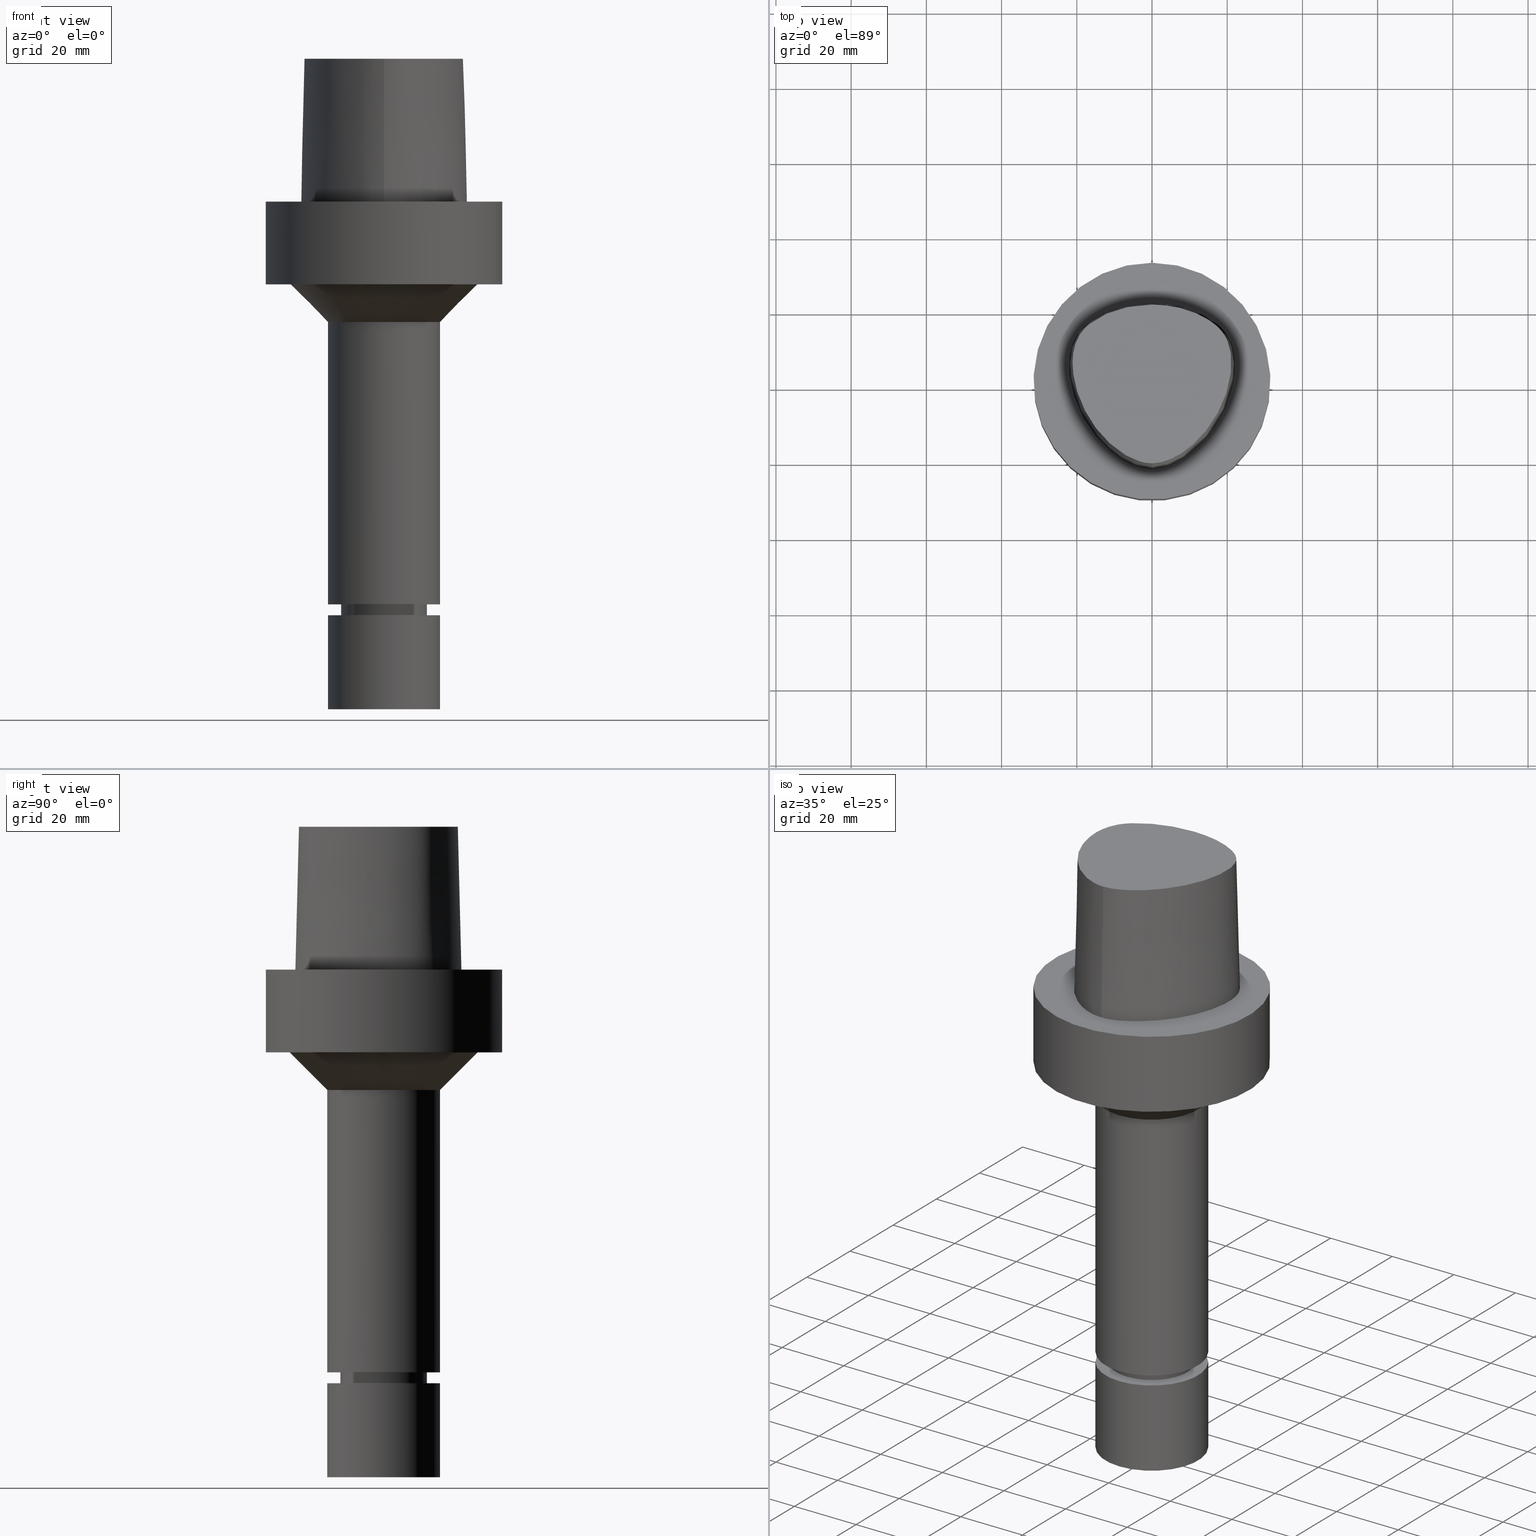
[diagram: canonical four-view strip — front | top / right | iso, engineering-drawing reading convention]
A machine part, canonical four-view strip (front | top / right | iso — engineering-drawing reading convention). The complete STEP part file that produces these views, byte-faithful:
ISO-10303-21;
HEADER;
FILE_DESCRIPTION((''),'1');
FILE_NAME('V:/90_\X2\53D65F9730C730FC30BF\X0\/00_\X2\6DE18DEF30C730FC30BF\X0\/ALL/CAPTO-BKUS\X2\52A05DE556F3\X0\_201801/C6-MEGAER/C6-MEGAER16-135NL.stp','2018-02-01T07:54:07',(''),(''),'Spatial Interop R21 SP3','Kubotek KeyCreator 2011 V10.0.2 (22737)',' ');
FILE_SCHEMA(('automotive_design'));
ENDSEC;
DATA;
#1=MECHANICAL_DESIGN_GEOMETRIC_PRESENTATION_REPRESENTATION(' ',(#14,#15,#16,#17,#18,#19,#20,#21,#22,#23,#24,#25,#26,#27,#28,#29,#30,#31,#32,#33,#34,#35,#36,#37,#38,#39,#40,#41,#42,#43,#44,#45,#46,#47,#48,#49,#50,#51,#52,#53),#10);
#2=PRODUCT_DEFINITION_CONTEXT('',#54,'design');
#3=APPLICATION_PROTOCOL_DEFINITION('INTERNATIONAL STANDARD','automotive_design',1994,#54);
#4=PRODUCT_CATEGORY_RELATIONSHIP('NONE','NONE',#55,#56);
#5=SHAPE_DEFINITION_REPRESENTATION(#57,#58);
#6=PRODUCT_DEFINITION_CONTEXT('',#59,'design');
#7=APPLICATION_PROTOCOL_DEFINITION('INTERNATIONAL STANDARD','automotive_design',1994,#59);
#8=PRODUCT_CATEGORY_RELATIONSHIP('NONE','NONE',#60,#61);
#9=SHAPE_DEFINITION_REPRESENTATION(#62,#63);
#10= (GEOMETRIC_REPRESENTATION_CONTEXT(3)GLOBAL_UNCERTAINTY_ASSIGNED_CONTEXT((#66))GLOBAL_UNIT_ASSIGNED_CONTEXT((#68,#69,#70))REPRESENTATION_CONTEXT('NONE','WORKSPACE'));
#14=STYLED_ITEM('',(#72,#73),#74);
#15=STYLED_ITEM('',(#75,#76),#77);
#16=STYLED_ITEM('',(#78,#79),#80);
#17=STYLED_ITEM('',(#81,#82),#83);
#18=STYLED_ITEM('',(#84),#85);
#19=STYLED_ITEM('',(#86,#87),#88);
#20=STYLED_ITEM('',(#89,#90),#91);
#21=STYLED_ITEM('',(#92),#93);
#22=STYLED_ITEM('',(#94),#95);
#23=STYLED_ITEM('',(#96,#97),#98);
#24=STYLED_ITEM('',(#99,#100),#101);
#25=STYLED_ITEM('',(#102),#103);
#26=STYLED_ITEM('',(#104),#105);
#27=STYLED_ITEM('',(#106),#107);
#28=STYLED_ITEM('',(#108),#109);
#29=STYLED_ITEM('',(#110,#111),#112);
#30=STYLED_ITEM('',(#113,#114),#115);
#31=STYLED_ITEM('',(#116,#117),#118);
#32=STYLED_ITEM('',(#119),#120);
#33=STYLED_ITEM('',(#121),#122);
#34=STYLED_ITEM('',(#123),#124);
#35=STYLED_ITEM('',(#125,#126),#127);
#36=STYLED_ITEM('',(#128),#129);
#37=STYLED_ITEM('',(#130,#131),#132);
#38=STYLED_ITEM('',(#133,#134),#135);
#39=STYLED_ITEM('',(#136,#137),#138);
#40=STYLED_ITEM('',(#139),#140);
#41=STYLED_ITEM('',(#141),#142);
#42=STYLED_ITEM('',(#143),#144);
#43=STYLED_ITEM('',(#145),#146);
#44=STYLED_ITEM('',(#147,#148),#149);
#45=STYLED_ITEM('',(#150),#151);
#46=STYLED_ITEM('',(#152),#153);
#47=STYLED_ITEM('',(#154,#155),#156);
#48=STYLED_ITEM('',(#157),#158);
#49=STYLED_ITEM('',(#159,#160),#161);
#50=STYLED_ITEM('',(#162,#163),#164);
#51=STYLED_ITEM('',(#165),#166);
#52=STYLED_ITEM('',(#167,#168),#169);
#53=STYLED_ITEM('',(#170),#171);
#54=APPLICATION_CONTEXT(' ');
#55=PRODUCT_CATEGORY('part','NONE');
#56=PRODUCT_RELATED_PRODUCT_CATEGORY('detail',' ',(#172));
#57=PRODUCT_DEFINITION_SHAPE('NONE','NONE',#173);
#58=ADVANCED_BREP_SHAPE_REPRESENTATION('Unnamed[1]',(#135,#174),#10);
#59=APPLICATION_CONTEXT(' ');
#60=PRODUCT_CATEGORY('part','NONE');
#61=PRODUCT_RELATED_PRODUCT_CATEGORY('detail',' ',(#175));
#62=PRODUCT_DEFINITION_SHAPE('NONE','NONE',#176);
#63=ADVANCED_BREP_SHAPE_REPRESENTATION('Unnamed[1]',(#127,#177),#10);
#66=UNCERTAINTY_MEASURE_WITH_UNIT(LENGTH_MEASURE(1.0E-006),#68,'','');
#68= (CONVERSION_BASED_UNIT('MILLIMETRE',#180)LENGTH_UNIT()NAMED_UNIT(#183));
#69= (NAMED_UNIT(#185)PLANE_ANGLE_UNIT()SI_UNIT($,.RADIAN.));
#70= (NAMED_UNIT(#185)SOLID_ANGLE_UNIT()SI_UNIT($,.STERADIAN.));
#72=PRESENTATION_STYLE_ASSIGNMENT((#191));
#73=PRESENTATION_STYLE_ASSIGNMENT((#192));
#74=ADVANCED_FACE('Unnamed[1]',(#193,#194),#195,.T.);
#75=PRESENTATION_STYLE_ASSIGNMENT((#196));
#76=PRESENTATION_STYLE_ASSIGNMENT((#197));
#77=ADVANCED_FACE('Unnamed[1]',(#198,#199),#200,.T.);
#78=PRESENTATION_STYLE_ASSIGNMENT((#201));
#79=PRESENTATION_STYLE_ASSIGNMENT((#202));
#80=ADVANCED_FACE('Unnamed[1]',(#203),#204,.T.);
#81=PRESENTATION_STYLE_ASSIGNMENT((#205));
#82=PRESENTATION_STYLE_ASSIGNMENT((#206));
#83=ADVANCED_FACE('Unnamed[1]',(#207),#208,.T.);
#84=PRESENTATION_STYLE_ASSIGNMENT((#209));
#85=EDGE_CURVE('Unnamed[1]',#210,#210,#211,.T.);
#86=PRESENTATION_STYLE_ASSIGNMENT((#212));
#87=PRESENTATION_STYLE_ASSIGNMENT((#213));
#88=ADVANCED_FACE('Unnamed[1]',(#214,#215),#216,.T.);
#89=PRESENTATION_STYLE_ASSIGNMENT((#217));
#90=PRESENTATION_STYLE_ASSIGNMENT((#218));
#91=ADVANCED_FACE('Unnamed[1]',(#219,#220),#221,.T.);
#92=PRESENTATION_STYLE_ASSIGNMENT((#222));
#93=EDGE_CURVE('Unnamed[1]',#223,#224,#225,.T.);
#94=PRESENTATION_STYLE_ASSIGNMENT((#226));
#95=EDGE_CURVE('Unnamed[1]',#227,#227,#228,.T.);
#96=PRESENTATION_STYLE_ASSIGNMENT((#229));
#97=PRESENTATION_STYLE_ASSIGNMENT((#230));
#98=ADVANCED_FACE('Unnamed[1]',(#231),#232,.T.);
#99=PRESENTATION_STYLE_ASSIGNMENT((#233));
#100=PRESENTATION_STYLE_ASSIGNMENT((#234));
#101=ADVANCED_FACE('Unnamed[1]',(#235,#236),#237,.T.);
#102=PRESENTATION_STYLE_ASSIGNMENT((#238));
#103=EDGE_CURVE('Unnamed[1]',#239,#223,#240,.T.);
#104=PRESENTATION_STYLE_ASSIGNMENT((#241));
#105=EDGE_CURVE('Unnamed[1]',#242,#242,#243,.T.);
#106=PRESENTATION_STYLE_ASSIGNMENT((#244));
#107=EDGE_CURVE('Unnamed[1]',#245,#245,#246,.T.);
#108=PRESENTATION_STYLE_ASSIGNMENT((#247));
#109=EDGE_CURVE('Unnamed[1]',#223,#239,#248,.T.);
#110=PRESENTATION_STYLE_ASSIGNMENT((#249));
#111=PRESENTATION_STYLE_ASSIGNMENT((#250));
#112=ADVANCED_FACE('Unnamed[1]',(#251,#252),#253,.T.);
#113=PRESENTATION_STYLE_ASSIGNMENT((#254));
#114=PRESENTATION_STYLE_ASSIGNMENT((#255));
#115=ADVANCED_FACE('Unnamed[1]',(#256),#257,.T.);
#116=PRESENTATION_STYLE_ASSIGNMENT((#258));
#117=PRESENTATION_STYLE_ASSIGNMENT((#259));
#118=ADVANCED_FACE('Unnamed[1]',(#260),#261,.T.);
#119=PRESENTATION_STYLE_ASSIGNMENT((#262));
#120=EDGE_CURVE('Unnamed[1]',#263,#263,#264,.T.);
#121=PRESENTATION_STYLE_ASSIGNMENT((#265));
#122=EDGE_CURVE('Unnamed[1]',#266,#266,#267,.T.);
#123=PRESENTATION_STYLE_ASSIGNMENT((#268));
#124=EDGE_CURVE('Unnamed[1]',#269,#269,#270,.T.);
#125=PRESENTATION_STYLE_ASSIGNMENT((#271));
#126=PRESENTATION_STYLE_ASSIGNMENT((#272));
#127=MANIFOLD_SOLID_BREP('Unnamed[1]',#273);
#128=PRESENTATION_STYLE_ASSIGNMENT((#274));
#129=EDGE_CURVE('Unnamed[1]',#275,#275,#276,.T.);
#130=PRESENTATION_STYLE_ASSIGNMENT((#277));
#131=PRESENTATION_STYLE_ASSIGNMENT((#278));
#132=ADVANCED_FACE('Unnamed[1]',(#279,#280),#281,.T.);
#133=PRESENTATION_STYLE_ASSIGNMENT((#282));
#134=PRESENTATION_STYLE_ASSIGNMENT((#283));
#135=MANIFOLD_SOLID_BREP('Unnamed[1]',#284);
#136=PRESENTATION_STYLE_ASSIGNMENT((#285));
#137=PRESENTATION_STYLE_ASSIGNMENT((#286));
#138=ADVANCED_FACE('Unnamed[1]',(#287),#288,.T.);
#139=PRESENTATION_STYLE_ASSIGNMENT((#289));
#140=EDGE_CURVE('Unnamed[1]',#290,#290,#291,.T.);
#141=PRESENTATION_STYLE_ASSIGNMENT((#292));
#142=EDGE_CURVE('Unnamed[1]',#293,#293,#294,.T.);
#143=PRESENTATION_STYLE_ASSIGNMENT((#295));
#144=EDGE_CURVE('Unnamed[1]',#296,#296,#297,.T.);
#145=PRESENTATION_STYLE_ASSIGNMENT((#298));
#146=EDGE_CURVE('Unnamed[1]',#239,#299,#300,.T.);
#147=PRESENTATION_STYLE_ASSIGNMENT((#301));
#148=PRESENTATION_STYLE_ASSIGNMENT((#302));
#149=ADVANCED_FACE('Unnamed[1]',(#303,#304),#305,.T.);
#150=PRESENTATION_STYLE_ASSIGNMENT((#306));
#151=EDGE_CURVE('Unnamed[1]',#307,#224,#308,.T.);
#152=PRESENTATION_STYLE_ASSIGNMENT((#309));
#153=EDGE_CURVE('Unnamed[1]',#299,#307,#310,.T.);
#154=PRESENTATION_STYLE_ASSIGNMENT((#311));
#155=PRESENTATION_STYLE_ASSIGNMENT((#312));
#156=ADVANCED_FACE('Unnamed[1]',(#313,#314),#315,.T.);
#157=PRESENTATION_STYLE_ASSIGNMENT((#316));
#158=EDGE_CURVE('Unnamed[1]',#224,#299,#317,.T.);
#159=PRESENTATION_STYLE_ASSIGNMENT((#318));
#160=PRESENTATION_STYLE_ASSIGNMENT((#319));
#161=ADVANCED_FACE('Unnamed[1]',(#320,#321),#322,.T.);
#162=PRESENTATION_STYLE_ASSIGNMENT((#323));
#163=PRESENTATION_STYLE_ASSIGNMENT((#324));
#164=ADVANCED_FACE('Unnamed[1]',(#325),#326,.T.);
#165=PRESENTATION_STYLE_ASSIGNMENT((#327));
#166=EDGE_CURVE('Unnamed[1]',#328,#328,#329,.T.);
#167=PRESENTATION_STYLE_ASSIGNMENT((#330));
#168=PRESENTATION_STYLE_ASSIGNMENT((#331));
#169=ADVANCED_FACE('Unnamed[1]',(#332,#333),#334,.T.);
#170=PRESENTATION_STYLE_ASSIGNMENT((#335));
#171=EDGE_CURVE('Unnamed[1]',#223,#307,#336,.T.);
#172=PRODUCT('Unnamed[1]','Unnamed[1]','PART-Unnamed[1]-DESC',(#337));
#173=PRODUCT_DEFINITION('NONE','NONE',#338,#2);
#174=AXIS2_PLACEMENT_3D('',#339,#340,#341);
#175=PRODUCT('Unnamed[1]','Unnamed[1]','PART-Unnamed[1]-DESC',(#342));
#176=PRODUCT_DEFINITION('NONE','NONE',#343,#6);
#177=AXIS2_PLACEMENT_3D('',#344,#345,#346);
#180=LENGTH_MEASURE_WITH_UNIT(LENGTH_MEASURE(1.0),#347);
#183=DIMENSIONAL_EXPONENTS(1.0,0.0,0.0,0.0,0.0,0.0,0.0);
#185=DIMENSIONAL_EXPONENTS(0.0,0.0,0.0,0.0,0.0,0.0,0.0);
#191=SURFACE_STYLE_USAGE(.BOTH.,#348);
#192=CURVE_STYLE('',#349,POSITIVE_LENGTH_MEASURE(1000.0),#350);
#193=FACE_BOUND('',#351,.T.);
#194=FACE_OUTER_BOUND('',#352,.T.);
#195=PLANE('',#353);
#196=SURFACE_STYLE_USAGE(.BOTH.,#354);
#197=CURVE_STYLE('',#355,POSITIVE_LENGTH_MEASURE(1000.0),#356);
#198=FACE_BOUND('',#357,.T.);
#199=FACE_BOUND('',#358,.T.);
#200=CYLINDRICAL_SURFACE('',#359,11.4999999999964);
#201=SURFACE_STYLE_USAGE(.BOTH.,#360);
#202=CURVE_STYLE('',#361,POSITIVE_LENGTH_MEASURE(1000.0),#362);
#203=FACE_OUTER_BOUND('',#363,.T.);
#204=CONICAL_SURFACE('',#364,1.0,0.0249931148600041);
#205=SURFACE_STYLE_USAGE(.BOTH.,#365);
#206=CURVE_STYLE('',#366,POSITIVE_LENGTH_MEASURE(1000.0),#367);
#207=FACE_OUTER_BOUND('',#368,.T.);
#208=PLANE('',#369);
#209=CURVE_STYLE('',#370,POSITIVE_LENGTH_MEASURE(1000.0),#371);
#210=VERTEX_POINT('',#372);
#211=CIRCLE('',#373,10.9999999999999);
#212=SURFACE_STYLE_USAGE(.BOTH.,#374);
#213=CURVE_STYLE('',#375,POSITIVE_LENGTH_MEASURE(1000.0),#376);
#214=FACE_BOUND('',#377,.T.);
#215=FACE_BOUND('',#378,.T.);
#216=CYLINDRICAL_SURFACE('',#379,15.0);
#217=SURFACE_STYLE_USAGE(.BOTH.,#380);
#218=CURVE_STYLE('',#381,POSITIVE_LENGTH_MEASURE(1000.0),#382);
#219=FACE_BOUND('',#383,.T.);
#220=FACE_OUTER_BOUND('',#384,.T.);
#221=PLANE('',#385);
#222=CURVE_STYLE('',#386,POSITIVE_LENGTH_MEASURE(1000.0),#387);
#223=VERTEX_POINT('',#388);
#224=VERTEX_POINT('',#389);
#225=LINE('',#390,#391);
#226=CURVE_STYLE('',#392,POSITIVE_LENGTH_MEASURE(1000.0),#393);
#227=VERTEX_POINT('',#394);
#228=CIRCLE('',#395,31.5);
#229=SURFACE_STYLE_USAGE(.BOTH.,#396);
#230=CURVE_STYLE('',#397,POSITIVE_LENGTH_MEASURE(1000.0),#398);
#231=FACE_OUTER_BOUND('',#399,.T.);
#232=B_SPLINE_SURFACE_WITH_KNOTS('',3,3,((#400,#401,#402,#403),(#404,#405,#406,#407),(#408,#409,#410,#411),(#412,#413,#414,#415),(#416,#417,#418,#419),(#420,#421,#422,#423),(#424,#425,#426,#427),(#428,#429,#430,#431),(#432,#433,#434,#435),(#436,#437,#438,#439),(#440,#441,#442,#443),(#444,#445,#446,#447),(#448,#449,#450,#451),(#452,#453,#454,#455),(#456,#457,#458,#459),(#460,#461,#462,#463),(#464,#465,#466,#467)),.UNSPECIFIED.,.F.,.F.,.F.,(4,1,1,1,1,1,1,1,1,1,1,1,1,1,4),(4,4),(-13.2302678617486,-12.816821991069,-12.4033761203893,-11.9899302497097,-11.57648437903,-11.1630385083504,-10.9563155730106,-10.7495926376707,-10.3361467669911,-9.92270089631145,-9.09580915495216,-8.26891741359287,-7.44202567223358,-7.02857980155394,-6.6151339308743),(-3.8,0.0),.UNSPECIFIED.);
#233=SURFACE_STYLE_USAGE(.BOTH.,#468);
#234=CURVE_STYLE('',#469,POSITIVE_LENGTH_MEASURE(1000.0),#470);
#235=FACE_BOUND('',#471,.T.);
#236=FACE_BOUND('',#472,.T.);
#237=CONICAL_SURFACE('',#473,10.4499999999999,0.523598775598224);
#238=CURVE_STYLE('',#474,POSITIVE_LENGTH_MEASURE(1000.0),#475);
#239=VERTEX_POINT('',#476);
#240=B_SPLINE_CURVE_WITH_KNOTS('',3,(#477,#478,#479,#480,#481,#482,#483,#484,#485,#486,#487,#488,#489,#490,#491,#492),.UNSPECIFIED.,.F.,.F.,(4,1,1,1,1,1,1,1,1,1,1,1,1,4),(6.61513393087476,6.99917207152274,7.48193246986995,7.96289324787093,8.45540287038584,9.10291653679981,9.67129810936083,10.1618749681153,10.6358867802489,11.1080734988593,11.6043706019633,12.09451993853,12.6985979284494,13.2302678617486),.UNSPECIFIED.);
#241=CURVE_STYLE('',#493,POSITIVE_LENGTH_MEASURE(1000.0),#494);
#242=VERTEX_POINT('',#495);
#243=CIRCLE('',#496,31.5);
#244=CURVE_STYLE('',#497,POSITIVE_LENGTH_MEASURE(1000.0),#498);
#245=VERTEX_POINT('',#499);
#246=CIRCLE('',#500,24.9999999999991);
#247=CURVE_STYLE('',#501,POSITIVE_LENGTH_MEASURE(1000.0),#502);
#248=B_SPLINE_CURVE_WITH_KNOTS('',3,(#503,#504,#505,#506,#507,#508,#509,#510,#511,#512,#513,#514,#515,#516,#517,#518),.UNSPECIFIED.,.F.,.F.,(4,1,1,1,1,1,1,1,1,1,1,1,1,4),(0.0,0.447924670568964,0.9388024242536,1.50591409090711,2.07314340012323,2.72424957442464,3.2253501842849,3.80982102049476,4.34867996267067,4.85900173381144,5.37972031856977,6.03459825488646,6.61113557741484,6.61513393087395),.UNSPECIFIED.);
#249=SURFACE_STYLE_USAGE(.BOTH.,#519);
#250=CURVE_STYLE('',#520,POSITIVE_LENGTH_MEASURE(1000.0),#521);
#251=FACE_BOUND('',#522,.T.);
#252=FACE_BOUND('',#523,.T.);
#253=CYLINDRICAL_SURFACE('',#524,11.0000000000001);
#254=SURFACE_STYLE_USAGE(.BOTH.,#525);
#255=CURVE_STYLE('',#526,POSITIVE_LENGTH_MEASURE(1000.0),#527);
#256=FACE_OUTER_BOUND('',#528,.T.);
#257=PLANE('',#529);
#258=SURFACE_STYLE_USAGE(.BOTH.,#530);
#259=CURVE_STYLE('',#531,POSITIVE_LENGTH_MEASURE(1000.0),#532);
#260=FACE_OUTER_BOUND('',#533,.T.);
#261=PLANE('',#534);
#262=CURVE_STYLE('',#535,POSITIVE_LENGTH_MEASURE(1000.0),#536);
#263=VERTEX_POINT('',#537);
#264=CIRCLE('',#538,15.0);
#265=CURVE_STYLE('',#539,POSITIVE_LENGTH_MEASURE(1000.0),#540);
#266=VERTEX_POINT('',#541);
#267=CIRCLE('',#542,14.9999999999997);
#268=CURVE_STYLE('',#543,POSITIVE_LENGTH_MEASURE(1000.0),#544);
#269=VERTEX_POINT('',#545);
#270=CIRCLE('',#546,11.4999999999907);
#271=SURFACE_STYLE_USAGE(.BOTH.,#547);
#272=CURVE_STYLE('',#548,POSITIVE_LENGTH_MEASURE(1000.0),#549);
#273=CLOSED_SHELL('',(#118,#138,#156));
#274=CURVE_STYLE('',#550,POSITIVE_LENGTH_MEASURE(1000.0),#551);
#275=VERTEX_POINT('',#552);
#276=CIRCLE('',#553,15.0000000000001);
#277=SURFACE_STYLE_USAGE(.BOTH.,#554);
#278=CURVE_STYLE('',#555,POSITIVE_LENGTH_MEASURE(1000.0),#556);
#279=FACE_BOUND('',#557,.T.);
#280=FACE_OUTER_BOUND('',#558,.T.);
#281=PLANE('',#559);
#282=SURFACE_STYLE_USAGE(.BOTH.,#560);
#283=CURVE_STYLE('',#561,POSITIVE_LENGTH_MEASURE(1000.0),#562);
#284=CLOSED_SHELL('',(#98,#164,#80,#83,#74,#149,#132,#169,#88,#91,#77,#161,#112,#101,#115));
#285=SURFACE_STYLE_USAGE(.BOTH.,#563);
#286=CURVE_STYLE('',#564,POSITIVE_LENGTH_MEASURE(1000.0),#565);
#287=FACE_OUTER_BOUND('',#566,.T.);
#288=PLANE('',#567);
#289=CURVE_STYLE('',#568,POSITIVE_LENGTH_MEASURE(1000.0),#569);
#290=VERTEX_POINT('',#570);
#291=CIRCLE('',#571,15.0000000000002);
#292=CURVE_STYLE('',#572,POSITIVE_LENGTH_MEASURE(1000.0),#573);
#293=VERTEX_POINT('',#574);
#294=CIRCLE('',#575,9.89999999999962);
#295=CURVE_STYLE('',#576,POSITIVE_LENGTH_MEASURE(1000.0),#577);
#296=VERTEX_POINT('',#578);
#297=CIRCLE('',#579,11.0000000000003);
#298=CURVE_STYLE('',#580,POSITIVE_LENGTH_MEASURE(1000.0),#581);
#299=VERTEX_POINT('',#582);
#300=LINE('',#583,#584);
#301=SURFACE_STYLE_USAGE(.BOTH.,#585);
#302=CURVE_STYLE('',#586,POSITIVE_LENGTH_MEASURE(1000.0),#587);
#303=FACE_BOUND('',#588,.T.);
#304=FACE_BOUND('',#589,.T.);
#305=CYLINDRICAL_SURFACE('',#590,31.5);
#306=CURVE_STYLE('',#591,POSITIVE_LENGTH_MEASURE(1000.0),#592);
#307=VERTEX_POINT('',#593);
#308=CIRCLE('',#594,0.949936168436318);
#309=CURVE_STYLE('',#595,POSITIVE_LENGTH_MEASURE(1000.0),#596);
#310=B_SPLINE_CURVE_WITH_KNOTS('',3,(#597,#598,#599,#600,#601,#602,#603,#604,#605,#606,#607,#608,#609,#610,#611,#612,#613,#614),.UNSPECIFIED.,.F.,.F.,(4,1,1,1,1,1,1,1,1,2,1,1,1,1,4),(-6.6151339308743,-6.20168806019465,-5.78824218951501,-5.37479631883537,-4.96135044815572,-4.13445870679644,-3.30756696543715,-2.89412109475751,-2.48067522407786,-2.06722935339822,-1.65378348271857,-1.24033761203893,-0.826891741359287,-0.413445870679644,0.0),.UNSPECIFIED.);
#311=SURFACE_STYLE_USAGE(.BOTH.,#615);
#312=CURVE_STYLE('',#616,POSITIVE_LENGTH_MEASURE(1000.0),#617);
#313=FACE_BOUND('',#618,.T.);
#314=FACE_BOUND('',#619,.T.);
#315=CYLINDRICAL_SURFACE('',#620,15.0);
#316=CURVE_STYLE('',#621,POSITIVE_LENGTH_MEASURE(1000.0),#622);
#317=B_SPLINE_CURVE_WITH_KNOTS('',3,(#623,#624,#625,#626,#627,#628,#629,#630,#631,#632,#633,#634,#635,#636,#637,#638,#639),.UNSPECIFIED.,.F.,.F.,(4,1,1,1,1,1,1,1,1,1,1,1,1,1,4),(-13.2302678617486,-12.816821991069,-12.4033761203893,-11.9899302497097,-11.57648437903,-11.1630385083504,-10.9563155730106,-10.7495926376707,-10.3361467669911,-9.92270089631145,-9.09580915495216,-8.26891741359287,-7.44202567223358,-7.02857980155394,-6.6151339308743),.UNSPECIFIED.);
#318=SURFACE_STYLE_USAGE(.BOTH.,#640);
#319=CURVE_STYLE('',#641,POSITIVE_LENGTH_MEASURE(1000.0),#642);
#320=FACE_BOUND('',#643,.T.);
#321=FACE_BOUND('',#644,.T.);
#322=CONICAL_SURFACE('',#645,11.250000000001,1.04719755118896);
#323=SURFACE_STYLE_USAGE(.BOTH.,#646);
#324=CURVE_STYLE('',#647,POSITIVE_LENGTH_MEASURE(1000.0),#648);
#325=FACE_OUTER_BOUND('',#649,.T.);
#326=B_SPLINE_SURFACE_WITH_KNOTS('',3,3,((#650,#651,#652,#653),(#654,#655,#656,#657),(#658,#659,#660,#661),(#662,#663,#664,#665),(#666,#667,#668,#669),(#670,#671,#672,#673),(#674,#675,#676,#677),(#678,#679,#680,#681),(#682,#683,#684,#685),(#686,#687,#688,#689),(#690,#691,#692,#693),(#694,#695,#696,#697),(#698,#699,#700,#701),(#702,#703,#704,#705),(#706,#707,#708,#709),(#710,#711,#712,#713),(#714,#715,#716,#717),(#718,#719,#720,#721)),.UNSPECIFIED.,.F.,.F.,.F.,(4,1,1,1,1,1,1,1,1,2,1,1,1,1,4),(4,4),(-6.6151339308743,-6.20168806019465,-5.78824218951501,-5.37479631883537,-4.96135044815572,-4.13445870679644,-3.30756696543715,-2.89412109475751,-2.48067522407786,-2.06722935339822,-1.65378348271857,-1.24033761203893,-0.826891741359287,-0.413445870679644,0.0),(-3.8,0.0),.UNSPECIFIED.);
#327=CURVE_STYLE('',#722,POSITIVE_LENGTH_MEASURE(1000.0),#723);
#328=VERTEX_POINT('',#724);
#329=CIRCLE('',#725,11.5000000000021);
#330=SURFACE_STYLE_USAGE(.BOTH.,#726);
#331=CURVE_STYLE('',#727,POSITIVE_LENGTH_MEASURE(1000.0),#728);
#332=FACE_BOUND('',#729,.T.);
#333=FACE_BOUND('',#730,.T.);
#334=CONICAL_SURFACE('',#731,19.9999999999994,0.785398163397415);
#335=CURVE_STYLE('',#732,POSITIVE_LENGTH_MEASURE(1000.0),#733);
#336=LINE('',#734,#735);
#337=PRODUCT_CONTEXT('',#54,'mechanical');
#338=PRODUCT_DEFINITION_FORMATION_WITH_SPECIFIED_SOURCE(' ','NONE',#172,.NOT_KNOWN.);
#339=CARTESIAN_POINT('',(0.0,0.0,0.0));
#340=DIRECTION('',(0.0,0.0,1.0));
#341=DIRECTION('',(1.0,0.0,0.0));
#342=PRODUCT_CONTEXT('',#59,'mechanical');
#343=PRODUCT_DEFINITION_FORMATION_WITH_SPECIFIED_SOURCE(' ','NONE',#175,.NOT_KNOWN.);
#344=CARTESIAN_POINT('',(0.0,0.0,0.0));
#345=DIRECTION('',(0.0,0.0,1.0));
#346=DIRECTION('',(1.0,0.0,0.0));
#347= (NAMED_UNIT(#183)LENGTH_UNIT()SI_UNIT(.MILLI.,.METRE.));
#348=SURFACE_SIDE_STYLE('',(#737));
#349=DRAUGHTING_PRE_DEFINED_CURVE_FONT('continuous');
#350=COLOUR_RGB('',0.0,1.0,0.0);
#351=EDGE_LOOP('',(#738,#739,#740));
#352=EDGE_LOOP('',(#741));
#353=AXIS2_PLACEMENT_3D('',#742,#743,#744);
#354=SURFACE_SIDE_STYLE('',(#745));
#355=DRAUGHTING_PRE_DEFINED_CURVE_FONT('continuous');
#356=COLOUR_RGB('',0.0,1.0,0.0);
#357=EDGE_LOOP('',(#746));
#358=EDGE_LOOP('',(#747));
#359=AXIS2_PLACEMENT_3D('',#748,#749,#750);
#360=SURFACE_SIDE_STYLE('',(#751));
#361=DRAUGHTING_PRE_DEFINED_CURVE_FONT('continuous');
#362=COLOUR_RGB('',0.0,1.0,0.0);
#363=EDGE_LOOP('',(#752,#753,#754));
#364=AXIS2_PLACEMENT_3D('',#755,#756,#757);
#365=SURFACE_SIDE_STYLE('',(#758));
#366=DRAUGHTING_PRE_DEFINED_CURVE_FONT('continuous');
#367=COLOUR_RGB('',0.0,1.0,0.0);
#368=EDGE_LOOP('',(#759,#760));
#369=AXIS2_PLACEMENT_3D('',#761,#762,#763);
#370=DRAUGHTING_PRE_DEFINED_CURVE_FONT('continuous');
#371=COLOUR_RGB('',0.0,1.0,0.0);
#372=CARTESIAN_POINT('',(6.93150088317393E-015,10.9999999999999,-113.199999999998));
#373=AXIS2_PLACEMENT_3D('',#764,#765,#766);
#374=SURFACE_SIDE_STYLE('',(#767));
#375=DRAUGHTING_PRE_DEFINED_CURVE_FONT('continuous');
#376=COLOUR_RGB('',0.0,1.0,0.0);
#377=EDGE_LOOP('',(#768));
#378=EDGE_LOOP('',(#769));
#379=AXIS2_PLACEMENT_3D('',#770,#771,#772);
#380=SURFACE_SIDE_STYLE('',(#773));
#381=DRAUGHTING_PRE_DEFINED_CURVE_FONT('continuous');
#382=COLOUR_RGB('',0.0,1.0,0.0);
#383=EDGE_LOOP('',(#774));
#384=EDGE_LOOP('',(#775));
#385=AXIS2_PLACEMENT_3D('',#776,#777,#778);
#386=DRAUGHTING_PRE_DEFINED_CURVE_FONT('continuous');
#387=COLOUR_RGB('',0.0,1.0,0.0);
#388=CARTESIAN_POINT('',(-0.001218547003662,19.7276821925089,38.0));
#389=CARTESIAN_POINT('',(0.044682985379347,20.6765087343109,1.61778115328528E-031));
#390=CARTESIAN_POINT('',(-0.001218547003662,19.7276821925089,38.0));
#391=VECTOR('',#779,38.0118715503078);
#392=DRAUGHTING_PRE_DEFINED_CURVE_FONT('continuous');
#393=COLOUR_RGB('',0.0,1.0,0.0);
#394=CARTESIAN_POINT('',(1.34711147906212E-015,31.5,-22.0000000000006));
#395=AXIS2_PLACEMENT_3D('',#780,#781,#782);
#396=SURFACE_SIDE_STYLE('',(#783));
#397=DRAUGHTING_PRE_DEFINED_CURVE_FONT('continuous');
#398=COLOUR_RGB('',0.0,1.0,0.0);
#399=EDGE_LOOP('',(#784,#785,#786,#787));
#400=CARTESIAN_POINT('',(-0.001218367817519,19.7276822012873,38.0));
#401=CARTESIAN_POINT('',(0.014082083248157,20.0439577123075,25.3333333333066));
#402=CARTESIAN_POINT('',(0.029382534313671,20.3602332232908,12.6666666666934));
#403=CARTESIAN_POINT('',(0.044682985379347,20.6765087343109,1.61778115328528E-031));
#404=CARTESIAN_POINT('',(1.37788651195108,19.6609652834875,38.0));
#405=CARTESIAN_POINT('',(1.3931885827258,19.9772407169847,25.3333333333066));
#406=CARTESIAN_POINT('',(1.40849065356095,20.2935162254648,12.6666666666934));
#407=CARTESIAN_POINT('',(1.42379272427753,20.6097915814392,8.62816615085482E-032));
#408=CARTESIAN_POINT('',(4.135446440878,19.5347778787784,38.0));
#409=CARTESIAN_POINT('',(4.16466278851883,19.8511031866125,25.3333333333066));
#410=CARTESIAN_POINT('',(4.1938791526746,20.1674284644204,12.6666666666934));
#411=CARTESIAN_POINT('',(4.2230955003445,20.4837538303966,1.4791141972894E-031));
#412=CARTESIAN_POINT('',(8.213607363795,18.7706026638736,38.0));
#413=CARTESIAN_POINT('',(8.29980745008421,19.0767495109635,25.3333333333066));
#414=CARTESIAN_POINT('',(8.38600751285747,19.3828964329996,12.6666666666934));
#415=CARTESIAN_POINT('',(8.47220762821777,19.6890432607088,9.86076131526265E-032));
#416=CARTESIAN_POINT('',(12.1316338645671,17.3698624840857,38.0));
#417=CARTESIAN_POINT('',(12.2591308270381,17.6610739397708,25.3333333333066));
#418=CARTESIAN_POINT('',(12.3866278083543,17.9522853923553,12.6666666666934));
#419=CARTESIAN_POINT('',(12.5141247708253,18.2434968480404,0.0));
#420=CARTESIAN_POINT('',(15.7706546153679,15.3789501349612,38.0));
#421=CARTESIAN_POINT('',(15.9483905900895,15.6437731794811,25.3333333333066));
#422=CARTESIAN_POINT('',(16.1261265513272,15.9085961736944,12.6666666666934));
#423=CARTESIAN_POINT('',(16.3038624872874,16.1734192182143,1.97215226305253E-031));
#424=CARTESIAN_POINT('',(18.4265894256284,13.0570022172893,38.0));
#425=CARTESIAN_POINT('',(18.6659567517146,13.2725589420689,25.3333333333066));
#426=CARTESIAN_POINT('',(18.9053240921419,13.4881156488541,12.6666666666934));
#427=CARTESIAN_POINT('',(19.1446913988473,13.7036723639434,-1.97215226305253E-031));
#428=CARTESIAN_POINT('',(19.8679958653038,10.6923771981998,38.0));
#429=CARTESIAN_POINT('',(20.1559937048299,10.8287388264873,25.3333333333066));
#430=CARTESIAN_POINT('',(20.4439915656177,10.965100461641,12.6666666666934));
#431=CARTESIAN_POINT('',(20.7319894342149,11.1014620996188,0.0));
#432=CARTESIAN_POINT('',(20.8470867582337,8.07149548576131,38.0));
#433=CARTESIAN_POINT('',(21.1591164072431,8.14132775555392,25.3333333333066));
#434=CARTESIAN_POINT('',(21.4711459821861,8.21116003697855,12.6666666666934));
#435=CARTESIAN_POINT('',(21.7831756505763,8.28099229708081,-1.97215226305253E-031));
#436=CARTESIAN_POINT('',(21.2693244256982,4.61157245650171,38.0));
#437=CARTESIAN_POINT('',(21.5881576801997,4.6105997689982,25.3333333333066));
#438=CARTESIAN_POINT('',(21.9069908544037,4.60962709346857,12.6666666666934));
#439=CARTESIAN_POINT('',(22.2258240701438,4.60865440596506,0.0));
#440=CARTESIAN_POINT('',(20.8071610855575,-0.912828649855193,38.0));
#441=CARTESIAN_POINT('',(21.119311671178,-0.979640884839481,25.3333333333066));
#442=CARTESIAN_POINT('',(21.4314624224461,-1.04645306732201,12.6666666666934));
#443=CARTESIAN_POINT('',(21.7436130080666,-1.11326526354485,0.0));
#444=CARTESIAN_POINT('',(18.6841935581315,-7.54428794252837,38.0));
#445=CARTESIAN_POINT('',(18.9734452551861,-7.6809665891091,25.3333333333066));
#446=CARTESIAN_POINT('',(19.2626970689956,-7.81764505382656,12.6666666666934));
#447=CARTESIAN_POINT('',(19.5519487660502,-7.95432366164584,0.0));
#448=CARTESIAN_POINT('',(14.2175552814,-14.5971504342323,38.0));
#449=CARTESIAN_POINT('',(14.4641757465198,-14.8010930946929,25.3333333333066));
#450=CARTESIAN_POINT('',(14.710796247264,-15.0050359737917,12.6666666666934));
#451=CARTESIAN_POINT('',(14.9574167123838,-15.2089785567293,0.0));
#452=CARTESIAN_POINT('',(9.0844808732933,-19.3179298129689,38.0));
#453=CARTESIAN_POINT('',(9.27912152349017,-19.572866915557,25.3333333333066));
#454=CARTESIAN_POINT('',(9.47376218971294,-19.827804295621,12.6666666666934));
#455=CARTESIAN_POINT('',(9.66840283021945,-20.0827414369705,-9.86076131526265E-032));
#456=CARTESIAN_POINT('',(4.17112919194182,-21.8987568152736,38.0));
#457=CARTESIAN_POINT('',(4.28618163483998,-22.1973837173649,25.3333333333066));
#458=CARTESIAN_POINT('',(4.40123406239433,-22.4960105163661,12.6666666666934));
#459=CARTESIAN_POINT('',(4.51628650521788,-22.7946374572188,-9.86076131526265E-032));
#460=CARTESIAN_POINT('',(1.41533654381097,-22.5120888467812,38.0));
#461=CARTESIAN_POINT('',(1.46311520162011,-22.8284916374445,25.3333333333066));
#462=CARTESIAN_POINT('',(1.51089385942236,-23.144894486341,12.6666666666934));
#463=CARTESIAN_POINT('',(1.55867251738073,-23.4612972770043,-1.23259516440783E-032));
#464=CARTESIAN_POINT('',(0.038736923393866,-22.5191997536361,38.0));
#465=CARTESIAN_POINT('',(0.04035580478973,-22.8358410047159,25.3333333333066));
#466=CARTESIAN_POINT('',(0.041974686185626,-23.1524822558133,12.6666666666934));
#467=CARTESIAN_POINT('',(0.04359356758149,-23.4691235068931,7.78075697532443E-032));
#468=SURFACE_SIDE_STYLE('',(#788));
#469=DRAUGHTING_PRE_DEFINED_CURVE_FONT('continuous');
#470=COLOUR_RGB('',0.0,1.0,0.0);
#471=EDGE_LOOP('',(#789));
#472=EDGE_LOOP('',(#790));
#473=AXIS2_PLACEMENT_3D('',#791,#792,#793);
#474=DRAUGHTING_PRE_DEFINED_CURVE_FONT('continuous');
#475=COLOUR_RGB('',0.0,1.0,0.0);
#476=CARTESIAN_POINT('',(0.038736923393866,-22.5191997536361,38.0));
#477=CARTESIAN_POINT('',(0.038736923394311,-22.519199753636,38.0));
#478=CARTESIAN_POINT('',(1.31742058183662,-22.512662269405,38.0));
#479=CARTESIAN_POINT('',(4.2093773447498,-21.9116226439989,38.0));
#480=CARTESIAN_POINT('',(8.20895504542113,-19.7798683845067,38.0));
#481=CARTESIAN_POINT('',(11.9784633234593,-16.681663904162,38.0));
#482=CARTESIAN_POINT('',(15.5308821579362,-12.5807487594113,38.0));
#483=CARTESIAN_POINT('',(18.4566248438667,-7.64932246015528,38.0));
#484=CARTESIAN_POINT('',(20.4036090752029,-2.27012499825289,38.0));
#485=CARTESIAN_POINT('',(21.2357187429189,2.79891401173156,38.0));
#486=CARTESIAN_POINT('',(21.0811206267748,7.62543090736657,38.0));
#487=CARTESIAN_POINT('',(19.3383577336563,12.2772250726194,38.0));
#488=CARTESIAN_POINT('',(15.5796322014404,15.5799672120682,38.0));
#489=CARTESIAN_POINT('',(10.8392956074438,17.9834601687347,38.0));
#490=CARTESIAN_POINT('',(5.56068045850571,19.4586143858472,38.0));
#491=CARTESIAN_POINT('',(1.77223893711014,19.6418877095654,38.0));
#492=CARTESIAN_POINT('',(-0.001218367817519,19.7276822012873,38.0));
#493=DRAUGHTING_PRE_DEFINED_CURVE_FONT('continuous');
#494=COLOUR_RGB('',0.0,1.0,0.0);
#495=CARTESIAN_POINT('',(-3.88267476788467E-031,31.5,3.85763741731416E-015));
#496=AXIS2_PLACEMENT_3D('',#794,#795,#796);
#497=DRAUGHTING_PRE_DEFINED_CURVE_FONT('continuous');
#498=COLOUR_RGB('',0.0,1.0,0.0);
#499=CARTESIAN_POINT('',(1.34711147906212E-015,24.9999999999991,-22.0000000000005));
#500=AXIS2_PLACEMENT_3D('',#797,#798,#799);
#501=DRAUGHTING_PRE_DEFINED_CURVE_FONT('continuous');
#502=COLOUR_RGB('',0.0,1.0,0.0);
#503=CARTESIAN_POINT('',(-0.001218547003662,19.7276821925089,38.0));
#504=CARTESIAN_POINT('',(-1.49408492138443,19.6585333605309,38.0));
#505=CARTESIAN_POINT('',(-4.62297391420352,19.513604770166,38.0));
#506=CARTESIAN_POINT('',(-9.56160616752212,18.4291575730197,38.0));
#507=CARTESIAN_POINT('',(-14.5427684976927,16.2697452580488,38.0));
#508=CARTESIAN_POINT('',(-19.4315563551602,12.5302108980807,38.0));
#509=CARTESIAN_POINT('',(-21.306358833612,6.76352894547076,38.0));
#510=CARTESIAN_POINT('',(-21.0724946936277,0.957075236984038,38.0));
#511=CARTESIAN_POINT('',(-19.7876470880144,-4.34628503581652,38.0));
#512=CARTESIAN_POINT('',(-17.5396999600095,-9.33314444653089,38.0));
#513=CARTESIAN_POINT('',(-14.645447733857,-13.7185760345629,38.0));
#514=CARTESIAN_POINT('',(-10.7996726536643,-17.856257282137,38.0));
#515=CARTESIAN_POINT('',(-6.00479510196376,-21.2687382067675,38.0));
#516=CARTESIAN_POINT('',(-1.90747171908525,-22.5250621415864,38.0));
#517=CARTESIAN_POINT('',(0.025424107066464,-22.5192678176378,38.0));
#518=CARTESIAN_POINT('',(0.038736923394311,-22.519199753636,38.0));
#519=SURFACE_SIDE_STYLE('',(#800));
#520=DRAUGHTING_PRE_DEFINED_CURVE_FONT('continuous');
#521=COLOUR_RGB('',0.0,1.0,0.0);
#522=EDGE_LOOP('',(#801));
#523=EDGE_LOOP('',(#802));
#524=AXIS2_PLACEMENT_3D('',#803,#804,#805);
#525=SURFACE_SIDE_STYLE('',(#806));
#526=DRAUGHTING_PRE_DEFINED_CURVE_FONT('continuous');
#527=COLOUR_RGB('',0.0,1.0,0.0);
#528=EDGE_LOOP('',(#807));
#529=AXIS2_PLACEMENT_3D('',#808,#809,#810);
#530=SURFACE_SIDE_STYLE('',(#811));
#531=DRAUGHTING_PRE_DEFINED_CURVE_FONT('continuous');
#532=COLOUR_RGB('',0.0,1.0,0.0);
#533=EDGE_LOOP('',(#812));
#534=AXIS2_PLACEMENT_3D('',#813,#814,#815);
#535=DRAUGHTING_PRE_DEFINED_CURVE_FONT('continuous');
#536=COLOUR_RGB('',0.0,1.0,0.0);
#537=CARTESIAN_POINT('',(8.26636589424463E-015,15.0,-135.0));
#538=AXIS2_PLACEMENT_3D('',#816,#817,#818);
#539=DRAUGHTING_PRE_DEFINED_CURVE_FONT('continuous');
#540=COLOUR_RGB('',0.0,1.0,0.0);
#541=CARTESIAN_POINT('',(1.9594348786358E-015,14.9999999999997,-32.0000000000006));
#542=AXIS2_PLACEMENT_3D('',#819,#820,#821);
#543=DRAUGHTING_PRE_DEFINED_CURVE_FONT('continuous');
#544=COLOUR_RGB('',0.0,1.0,0.0);
#545=CARTESIAN_POINT('',(6.55798361643999E-015,11.4999999999907,-107.100000114415));
#546=AXIS2_PLACEMENT_3D('',#822,#823,#824);
#547=SURFACE_SIDE_STYLE('',(#825));
#548=DRAUGHTING_PRE_DEFINED_CURVE_FONT('continuous');
#549=COLOUR_RGB('',0.0,1.0,0.0);
#550=DRAUGHTING_PRE_DEFINED_CURVE_FONT('continuous');
#551=COLOUR_RGB('',0.0,1.0,0.0);
#552=CARTESIAN_POINT('',(6.73555739531044E-015,15.0000000000001,-110.0));
#553=AXIS2_PLACEMENT_3D('',#826,#827,#828);
#554=SURFACE_SIDE_STYLE('',(#829));
#555=DRAUGHTING_PRE_DEFINED_CURVE_FONT('continuous');
#556=COLOUR_RGB('',0.0,1.0,0.0);
#557=EDGE_LOOP('',(#830));
#558=EDGE_LOOP('',(#831));
#559=AXIS2_PLACEMENT_3D('',#832,#833,#834);
#560=SURFACE_SIDE_STYLE('',(#835));
#561=DRAUGHTING_PRE_DEFINED_CURVE_FONT('continuous');
#562=COLOUR_RGB('',0.0,1.0,0.0);
#563=SURFACE_SIDE_STYLE('',(#836));
#564=DRAUGHTING_PRE_DEFINED_CURVE_FONT('continuous');
#565=COLOUR_RGB('',0.0,1.0,0.0);
#566=EDGE_LOOP('',(#837));
#567=AXIS2_PLACEMENT_3D('',#838,#839,#840);
#568=DRAUGHTING_PRE_DEFINED_CURVE_FONT('continuous');
#569=COLOUR_RGB('',0.0,1.0,0.0);
#570=CARTESIAN_POINT('',(6.55798361643999E-015,15.0000000000002,-107.100000114415));
#571=AXIS2_PLACEMENT_3D('',#841,#842,#843);
#572=DRAUGHTING_PRE_DEFINED_CURVE_FONT('continuous');
#573=COLOUR_RGB('',0.0,1.0,0.0);
#574=CARTESIAN_POINT('',(7.72752130261974E-015,9.89999999999963,-126.199999999999));
#575=AXIS2_PLACEMENT_3D('',#844,#845,#846);
#576=DRAUGHTING_PRE_DEFINED_CURVE_FONT('continuous');
#577=COLOUR_RGB('',0.0,1.0,0.0);
#578=CARTESIAN_POINT('',(7.61085802635992E-015,11.0000000000003,-124.294744111672));
#579=AXIS2_PLACEMENT_3D('',#847,#848,#849);
#580=DRAUGHTING_PRE_DEFINED_CURVE_FONT('continuous');
#581=COLOUR_RGB('',0.0,1.0,0.0);
#582=CARTESIAN_POINT('',(0.04359356758149,-23.4691235068931,7.78075697532443E-032));
#583=CARTESIAN_POINT('',(0.038736923393866,-22.5191997536361,38.0));
#584=VECTOR('',#850,38.0118715498723);
#585=SURFACE_SIDE_STYLE('',(#851));
#586=DRAUGHTING_PRE_DEFINED_CURVE_FONT('continuous');
#587=COLOUR_RGB('',0.0,1.0,0.0);
#588=EDGE_LOOP('',(#852));
#589=EDGE_LOOP('',(#853));
#590=AXIS2_PLACEMENT_3D('',#854,#855,#856);
#591=DRAUGHTING_PRE_DEFINED_CURVE_FONT('continuous');
#592=COLOUR_RGB('',0.0,1.0,0.0);
#593=CARTESIAN_POINT('',(-0.045171994691285,20.6766009553285,1.6755590516169E-031));
#594=AXIS2_PLACEMENT_3D('',#857,#858,#859);
#595=DRAUGHTING_PRE_DEFINED_CURVE_FONT('continuous');
#596=COLOUR_RGB('',0.0,1.0,0.0);
#597=CARTESIAN_POINT('',(0.04359356758149,-23.4691235068931,7.78075697532443E-032));
#598=CARTESIAN_POINT('',(-1.4714994713963,-23.4767895315797,2.46519032881566E-032));
#599=CARTESIAN_POINT('',(-4.43923476371401,-22.821149804767,-4.93038065763132E-032));
#600=CARTESIAN_POINT('',(-8.35043230079961,-20.8000751253325,-9.86076131526265E-032));
#601=CARTESIAN_POINT('',(-11.744900222602,-18.1556117874078,-1.97215226305253E-031));
#602=CARTESIAN_POINT('',(-15.6989602501314,-14.0406306929147,-1.97215226305253E-031));
#603=CARTESIAN_POINT('',(-19.5352875070682,-8.00624990770787,1.97215226305253E-031));
#604=CARTESIAN_POINT('',(-21.7205626190491,-1.16081708945282,0.0));
#605=CARTESIAN_POINT('',(-22.2486616783342,4.54965558738736,0.0));
#606=CARTESIAN_POINT('',(-21.6646421256468,9.00229539124618,0.0));
#607=CARTESIAN_POINT('',(-20.3945635471922,11.7780544971003,0.0));
#608=CARTESIAN_POINT('',(-18.5925528034471,14.1980602922581,0.0));
#609=CARTESIAN_POINT('',(-16.3226584122258,16.1777748720707,0.0));
#610=CARTESIAN_POINT('',(-12.5076407874579,18.2524201541303,9.86076131526265E-032));
#611=CARTESIAN_POINT('',(-8.46776192107786,19.679114377952,9.86076131526265E-032));
#612=CARTESIAN_POINT('',(-4.23043497193604,20.487781597334,1.97215226305253E-031));
#613=CARTESIAN_POINT('',(-1.42313094248379,20.6127745766442,1.10933564796705E-031));
#614=CARTESIAN_POINT('',(-0.045171994691285,20.6766009553285,1.6755590516169E-031));
#615=SURFACE_SIDE_STYLE('',(#860));
#616=DRAUGHTING_PRE_DEFINED_CURVE_FONT('continuous');
#617=COLOUR_RGB('',0.0,1.0,0.0);
#618=EDGE_LOOP('',(#861));
#619=EDGE_LOOP('',(#862));
#620=AXIS2_PLACEMENT_3D('',#863,#864,#865);
#621=DRAUGHTING_PRE_DEFINED_CURVE_FONT('continuous');
#622=COLOUR_RGB('',0.0,1.0,0.0);
#623=CARTESIAN_POINT('',(0.044682985379347,20.6765087343109,1.61778115328528E-031));
#624=CARTESIAN_POINT('',(1.42379272427753,20.6097915814392,8.62816615085482E-032));
#625=CARTESIAN_POINT('',(4.2230955003445,20.4837538303966,1.4791141972894E-031));
#626=CARTESIAN_POINT('',(8.47220762821777,19.6890432607088,9.86076131526265E-032));
#627=CARTESIAN_POINT('',(12.5141247708253,18.2434968480404,0.0));
#628=CARTESIAN_POINT('',(16.3038624872874,16.1734192182143,1.97215226305253E-031));
#629=CARTESIAN_POINT('',(19.1446913988473,13.7036723639434,-1.97215226305253E-031));
#630=CARTESIAN_POINT('',(20.7319894342149,11.1014620996188,0.0));
#631=CARTESIAN_POINT('',(21.7831756505763,8.28099229708081,-1.97215226305253E-031));
#632=CARTESIAN_POINT('',(22.2258240701438,4.60865440596506,0.0));
#633=CARTESIAN_POINT('',(21.7436130080666,-1.11326526354485,0.0));
#634=CARTESIAN_POINT('',(19.5519487660502,-7.95432366164584,0.0));
#635=CARTESIAN_POINT('',(14.9574167123838,-15.2089785567293,0.0));
#636=CARTESIAN_POINT('',(9.66840283021945,-20.0827414369705,-9.86076131526265E-032));
#637=CARTESIAN_POINT('',(4.51628650521788,-22.7946374572188,-9.86076131526265E-032));
#638=CARTESIAN_POINT('',(1.55867251738073,-23.4612972770043,-1.23259516440783E-032));
#639=CARTESIAN_POINT('',(0.04359356758149,-23.4691235068931,7.78075697532443E-032));
#640=SURFACE_SIDE_STYLE('',(#866));
#641=DRAUGHTING_PRE_DEFINED_CURVE_FONT('continuous');
#642=COLOUR_RGB('',0.0,1.0,0.0);
#643=EDGE_LOOP('',(#867));
#644=EDGE_LOOP('',(#868));
#645=AXIS2_PLACEMENT_3D('',#869,#870,#871);
#646=SURFACE_SIDE_STYLE('',(#872));
#647=DRAUGHTING_PRE_DEFINED_CURVE_FONT('continuous');
#648=COLOUR_RGB('',0.0,1.0,0.0);
#649=EDGE_LOOP('',(#873,#874,#875,#876));
#650=CARTESIAN_POINT('',(0.038736923393866,-22.5191997536361,38.0));
#651=CARTESIAN_POINT('',(0.04035580478973,-22.8358410047159,25.3333333333066));
#652=CARTESIAN_POINT('',(0.041974686185626,-23.1524822558133,12.6666666666934));
#653=CARTESIAN_POINT('',(0.04359356758149,-23.4691235068931,7.78075697532443E-032));
#654=CARTESIAN_POINT('',(-1.33786123484754,-22.5261650259856,38.0));
#655=CARTESIAN_POINT('',(-1.38240731367927,-22.8430399310626,25.3333333333066));
#656=CARTESIAN_POINT('',(-1.42695339249092,-23.1599147815484,12.6666666666934));
#657=CARTESIAN_POINT('',(-1.4714994713963,-23.4767895315797,2.46519032881566E-032));
#658=CARTESIAN_POINT('',(-4.08909358431842,-21.9268839879558,38.0));
#659=CARTESIAN_POINT('',(-4.20580731135515,-22.2249725500078,25.3333333333066));
#660=CARTESIAN_POINT('',(-4.32252104640446,-22.5230611651922,12.6666666666934));
#661=CARTESIAN_POINT('',(-4.43923476371401,-22.821149804767,-4.93038065763132E-032));
#662=CARTESIAN_POINT('',(-7.8333083619947,-19.9973514861616,38.0));
#663=CARTESIAN_POINT('',(-8.00568301809614,-20.2649260859405,25.3333333333066));
#664=CARTESIAN_POINT('',(-8.1780576640789,-20.532500564315,12.6666666666934));
#665=CARTESIAN_POINT('',(-8.35043230079961,-20.8000751253325,-9.86076131526265E-032));
#666=CARTESIAN_POINT('',(-11.1035071147626,-17.450554957873,38.0));
#667=CARTESIAN_POINT('',(-11.3173048160562,-17.6855739222454,25.3333333333066));
#668=CARTESIAN_POINT('',(-11.5311025116181,-17.9205928617968,12.6666666666934));
#669=CARTESIAN_POINT('',(-11.744900222602,-18.1556117874078,-1.97215226305253E-031));
#670=CARTESIAN_POINT('',(-14.9379535189057,-13.461132049697,38.0));
#671=CARTESIAN_POINT('',(-15.191622410671,-13.6542981711372,25.3333333333066));
#672=CARTESIAN_POINT('',(-15.4452913389853,-13.8474645327131,12.6666666666934));
#673=CARTESIAN_POINT('',(-15.6989602501314,-14.0406306929147,-1.97215226305253E-031));
#674=CARTESIAN_POINT('',(-18.6681263017223,-7.59391757463204,38.0));
#675=CARTESIAN_POINT('',(-18.9571800800711,-7.73136168081928,25.3333333333066));
#676=CARTESIAN_POINT('',(-19.2462337287194,-7.86880572399774,12.6666666666934));
#677=CARTESIAN_POINT('',(-19.5352875070682,-8.00624990770787,1.97215226305253E-031));
#678=CARTESIAN_POINT('',(-20.7857899858339,-0.952862819790525,38.0));
#679=CARTESIAN_POINT('',(-21.0973808305434,-1.02218087467418,25.3333333333066));
#680=CARTESIAN_POINT('',(-21.408971677436,-1.09149899580772,12.6666666666934));
#681=CARTESIAN_POINT('',(-21.7205626190491,-1.16081708945282,0.0));
#682=CARTESIAN_POINT('',(-21.2911760556836,4.5469215763113,38.0));
#683=CARTESIAN_POINT('',(-21.610337904926,4.54783292082248,25.3333333333066));
#684=CARTESIAN_POINT('',(-21.9294998290918,4.54874426225691,12.6666666666934));
#685=CARTESIAN_POINT('',(-22.2486616783342,4.54965558738736,0.0));
#686=CARTESIAN_POINT('',(-20.7345309521958,8.74909381391006,38.0));
#687=CARTESIAN_POINT('',(-21.0445680426217,8.83349432450556,25.3333333333066));
#688=CARTESIAN_POINT('',(-21.3546050933631,8.91789488065068,12.6666666666934));
#689=CARTESIAN_POINT('',(-21.6646421256468,9.00229539124618,0.0));
#690=CARTESIAN_POINT('',(-19.5531512296439,11.3174844040833,38.0));
#691=CARTESIAN_POINT('',(-19.8336219699984,11.4710077674213,25.3333333333066));
#692=CARTESIAN_POINT('',(-20.1140927680763,11.6245311337623,12.6666666666934));
#693=CARTESIAN_POINT('',(-20.3945635471922,11.7780544971003,0.0));
#694=CARTESIAN_POINT('',(-17.9100913688793,13.524027510437,38.0));
#695=CARTESIAN_POINT('',(-18.1375785458768,13.7487051053655,25.3333333333066));
#696=CARTESIAN_POINT('',(-18.365065665211,13.9733826973296,12.6666666666934));
#697=CARTESIAN_POINT('',(-18.5925528034471,14.1980602922581,0.0));
#698=CARTESIAN_POINT('',(-15.7996349656398,15.3762170634413,38.0));
#699=CARTESIAN_POINT('',(-15.9739761051783,15.6434029846179,25.3333333333066));
#700=CARTESIAN_POINT('',(-16.1483172726872,15.9105889315134,12.6666666666934));
#701=CARTESIAN_POINT('',(-16.3226584122258,16.1777748720707,0.0));
#702=CARTESIAN_POINT('',(-12.1175640002064,17.3825162484012,38.0));
#703=CARTESIAN_POINT('',(-12.2475895903055,17.6724842099619,25.3333333333066));
#704=CARTESIAN_POINT('',(-12.3776152070492,17.9624521925696,12.6666666666934));
#705=CARTESIAN_POINT('',(-12.5076407874579,18.2524201541303,9.86076131526265E-032));
#706=CARTESIAN_POINT('',(-8.21761151654222,18.7588585989994,38.0));
#707=CARTESIAN_POINT('',(-8.30099497910627,19.0656105427881,25.3333333333066));
#708=CARTESIAN_POINT('',(-8.38437843913309,19.3723624535439,12.6666666666934));
#709=CARTESIAN_POINT('',(-8.46776192107786,19.679114377952,9.86076131526265E-032));
#710=CARTESIAN_POINT('',(-4.13466093881225,19.5396850837055,38.0));
#711=CARTESIAN_POINT('',(-4.16658562115465,19.8557172636973,25.3333333333066));
#712=CARTESIAN_POINT('',(-4.19851029939059,20.1717494367229,12.6666666666934));
#713=CARTESIAN_POINT('',(-4.23043497193604,20.487781597334,1.97215226305253E-031));
#714=CARTESIAN_POINT('',(-1.37917220403684,19.6638560588908,38.0));
#715=CARTESIAN_POINT('',(-1.39382511685176,19.98016223565,25.3333333333066));
#716=CARTESIAN_POINT('',(-1.40847802945569,20.296468399885,12.6666666666934));
#717=CARTESIAN_POINT('',(-1.42313094248379,20.6127745766442,1.10933564796705E-031));
#718=CARTESIAN_POINT('',(-0.001218547003662,19.7276821925089,38.0));
#719=CARTESIAN_POINT('',(-0.015869696232855,20.043988446791,25.3333333333066));
#720=CARTESIAN_POINT('',(-0.030520845462092,20.3602947010464,12.6666666666934));
#721=CARTESIAN_POINT('',(-0.045171994691285,20.6766009553285,1.6755590516169E-031));
#722=DRAUGHTING_PRE_DEFINED_CURVE_FONT('continuous');
#723=COLOUR_RGB('',0.0,1.0,0.0);
#724=CARTESIAN_POINT('',(6.91382462919479E-015,11.5000000000021,-112.911324865397));
#725=AXIS2_PLACEMENT_3D('',#877,#878,#879);
#726=SURFACE_SIDE_STYLE('',(#880));
#727=DRAUGHTING_PRE_DEFINED_CURVE_FONT('continuous');
#728=COLOUR_RGB('',0.0,1.0,0.0);
#729=EDGE_LOOP('',(#881));
#730=EDGE_LOOP('',(#882));
#731=AXIS2_PLACEMENT_3D('',#883,#884,#885);
#732=DRAUGHTING_PRE_DEFINED_CURVE_FONT('continuous');
#733=COLOUR_RGB('',0.0,1.0,0.0);
#734=CARTESIAN_POINT('',(-0.001218547003662,19.7276821925089,38.0));
#735=VECTOR('',#886,38.0118715498723);
#737=SURFACE_STYLE_FILL_AREA(#887);
#738=ORIENTED_EDGE('',*,*,#158,.T.);
#739=ORIENTED_EDGE('',*,*,#153,.T.);
#740=ORIENTED_EDGE('',*,*,#151,.T.);
#741=ORIENTED_EDGE('',*,*,#105,.F.);
#742=CARTESIAN_POINT('',(-1.94133738394233E-031,15.75,1.92881870865708E-015));
#743=DIRECTION('',(-6.12323399573677E-017,-1.22464679914735E-016,1.0));
#744=DIRECTION('',(1.23259516440783E-032,-1.0,-1.22464679914735E-016));
#745=SURFACE_STYLE_FILL_AREA(#888);
#746=ORIENTED_EDGE('',*,*,#166,.F.);
#747=ORIENTED_EDGE('',*,*,#124,.T.);
#748=CARTESIAN_POINT('',(6.73590412281739E-015,1.34718082456348E-014,-110.005662489906));
#749=DIRECTION('',(6.12323399573676E-017,1.22464679914735E-016,-1.0));
#750=DIRECTION('',(-1.23259516440783E-032,1.0,1.22464679914735E-016));
#751=SURFACE_STYLE_FILL_AREA(#889);
#752=ORIENTED_EDGE('',*,*,#151,.F.);
#753=ORIENTED_EDGE('',*,*,#171,.F.);
#754=ORIENTED_EDGE('',*,*,#93,.T.);
#755=CARTESIAN_POINT('',(-0.001218547003662,19.7276821925089,-2.00268782779425));
#756=DIRECTION('',(2.1678647975542E-051,-3.42380273908985E-049,-1.0));
#757=DIRECTION('',(-0.046269895968506,0.99892897481606,-3.42113882891801E-049));
#758=SURFACE_STYLE_FILL_AREA(#890);
#759=ORIENTED_EDGE('',*,*,#109,.T.);
#760=ORIENTED_EDGE('',*,*,#103,.T.);
#761=CARTESIAN_POINT('',(0.008647668684817,1.77491953635526,38.0));
#762=DIRECTION('',(-0.0,2.95577857036584E-049,1.0));
#763=DIRECTION('',(1.0,0.0,0.0));
#764=CARTESIAN_POINT('',(6.93150088317393E-015,1.38630017663478E-014,-113.199999999998));
#765=DIRECTION('',(6.12323399573676E-017,1.22464679914735E-016,-1.0));
#766=DIRECTION('',(-1.23259516440783E-032,1.0,1.22464679914735E-016));
#767=SURFACE_STYLE_FILL_AREA(#891);
#768=ORIENTED_EDGE('',*,*,#140,.F.);
#769=ORIENTED_EDGE('',*,*,#122,.T.);
#770=CARTESIAN_POINT('',(4.25870924753789E-015,8.51741849507578E-015,-69.5500000572079));
#771=DIRECTION('',(6.12323399573677E-017,1.22464679914735E-016,-1.0));
#772=DIRECTION('',(-1.23259516440783E-032,1.0,1.22464679914735E-016));
#773=SURFACE_STYLE_FILL_AREA(#892);
#774=ORIENTED_EDGE('',*,*,#124,.F.);
#775=ORIENTED_EDGE('',*,*,#140,.T.);
#776=CARTESIAN_POINT('',(6.55798361643999E-015,13.2499999999955,-107.100000114415));
#777=DIRECTION('',(6.12323399573677E-017,1.22464679914735E-016,-1.0));
#778=DIRECTION('',(-1.23259516440783E-032,1.0,1.22464679914735E-016));
#779=DIRECTION('',(0.001207557810519,0.024961321374199,-0.999687688350411));
#780=CARTESIAN_POINT('',(1.34711147906212E-015,2.69422295812425E-015,-22.0000000000006));
#781=DIRECTION('',(6.12323399573677E-017,1.22464679914735E-016,-1.0));
#782=DIRECTION('',(-1.23259516440783E-032,1.0,1.22464679914735E-016));
#783=SURFACE_STYLE_FILL_AREA(#893);
#784=ORIENTED_EDGE('',*,*,#158,.F.);
#785=ORIENTED_EDGE('',*,*,#93,.F.);
#786=ORIENTED_EDGE('',*,*,#103,.F.);
#787=ORIENTED_EDGE('',*,*,#146,.T.);
#788=SURFACE_STYLE_FILL_AREA(#894);
#789=ORIENTED_EDGE('',*,*,#142,.F.);
#790=ORIENTED_EDGE('',*,*,#144,.T.);
#791=CARTESIAN_POINT('',(7.66918966448983E-015,1.53383793289797E-014,-125.247372055836));
#792=DIRECTION('',(-6.12323399573677E-017,-1.22464679914735E-016,1.0));
#793=DIRECTION('',(-1.23259516440783E-032,1.0,1.22464679914735E-016));
#794=CARTESIAN_POINT('',(0.0,0.0,0.0));
#795=DIRECTION('',(6.12323399573677E-017,1.22464679914735E-016,-1.0));
#796=DIRECTION('',(-1.23259516440783E-032,1.0,1.22464679914735E-016));
#797=CARTESIAN_POINT('',(1.34711147906212E-015,2.69422295812424E-015,-22.0000000000005));
#798=DIRECTION('',(6.12323399573677E-017,1.22464679914735E-016,-1.0));
#799=DIRECTION('',(-1.23259516440783E-032,1.0,1.22464679914735E-016));
#800=SURFACE_STYLE_FILL_AREA(#895);
#801=ORIENTED_EDGE('',*,*,#144,.F.);
#802=ORIENTED_EDGE('',*,*,#85,.T.);
#803=CARTESIAN_POINT('',(7.27117945476692E-015,1.45423589095338E-014,-118.747372055835));
#804=DIRECTION('',(6.12323399573677E-017,1.22464679914735E-016,-1.0));
#805=DIRECTION('',(-1.23259516440783E-032,1.0,1.22464679914735E-016));
#806=SURFACE_STYLE_FILL_AREA(#896);
#807=ORIENTED_EDGE('',*,*,#142,.T.);
#808=CARTESIAN_POINT('',(7.72752130261977E-015,4.94999999999982,-126.2));
#809=DIRECTION('',(6.12323399573677E-017,8.19425372825961E-014,-1.0));
#810=DIRECTION('',(-5.02236045258797E-030,1.0,8.19425372825961E-014));
#811=SURFACE_STYLE_FILL_AREA(#897);
#812=ORIENTED_EDGE('',*,*,#120,.T.);
#813=CARTESIAN_POINT('',(8.26636589424463E-015,7.50000000000002,-135.0));
#814=DIRECTION('',(6.12323399573677E-017,1.22464679914735E-016,-1.0));
#815=DIRECTION('',(-1.23259516440783E-032,1.0,1.22464679914735E-016));
#816=CARTESIAN_POINT('',(8.26636589424463E-015,1.65327317884893E-014,-135.0));
#817=DIRECTION('',(6.12323399573677E-017,1.22464679914735E-016,-1.0));
#818=DIRECTION('',(-1.23259516440783E-032,1.0,1.22464679914735E-016));
#819=CARTESIAN_POINT('',(1.9594348786358E-015,3.9188697572716E-015,-32.0000000000006));
#820=DIRECTION('',(6.12323399573677E-017,1.22464679914735E-016,-1.0));
#821=DIRECTION('',(-1.23259516440783E-032,1.0,1.22464679914735E-016));
#822=CARTESIAN_POINT('',(6.55798361643999E-015,1.311596723288E-014,-107.100000114415));
#823=DIRECTION('',(6.12323399573677E-017,1.22464679914735E-016,-1.0));
#824=DIRECTION('',(-1.23259516440783E-032,1.0,1.22464679914735E-016));
#825=SURFACE_STYLE_FILL_AREA(#898);
#826=CARTESIAN_POINT('',(6.73555739531044E-015,1.34711147906209E-014,-110.0));
#827=DIRECTION('',(6.12323399573677E-017,1.22464679914735E-016,-1.0));
#828=DIRECTION('',(-1.23259516440783E-032,1.0,1.22464679914735E-016));
#829=SURFACE_STYLE_FILL_AREA(#899);
#830=ORIENTED_EDGE('',*,*,#107,.F.);
#831=ORIENTED_EDGE('',*,*,#95,.T.);
#832=CARTESIAN_POINT('',(1.34711147906212E-015,28.2499999999996,-22.0000000000006));
#833=DIRECTION('',(6.12323399573677E-017,-4.25010600168528E-015,-1.0));
#834=DIRECTION('',(2.55416782819272E-031,1.0,-4.25010600168528E-015));
#835=SURFACE_STYLE_FILL_AREA(#900);
#836=SURFACE_STYLE_FILL_AREA(#901);
#837=ORIENTED_EDGE('',*,*,#129,.F.);
#838=CARTESIAN_POINT('',(6.73555739531044E-015,7.50000000000005,-110.0));
#839=DIRECTION('',(-6.12323399573677E-017,-1.22464679914735E-016,1.0));
#840=DIRECTION('',(1.23259516440783E-032,-1.0,-1.22464679914735E-016));
#841=CARTESIAN_POINT('',(6.55798361643999E-015,1.311596723288E-014,-107.100000114415));
#842=DIRECTION('',(6.12323399573677E-017,1.22464679914735E-016,-1.0));
#843=DIRECTION('',(-1.23259516440783E-032,1.0,1.22464679914735E-016));
#844=CARTESIAN_POINT('',(7.72752130261974E-015,1.54550426052395E-014,-126.199999999999));
#845=DIRECTION('',(6.12323399573677E-017,1.22464679914735E-016,-1.0));
#846=DIRECTION('',(-1.23259516440783E-032,1.0,1.22464679914735E-016));
#847=CARTESIAN_POINT('',(7.61085802635992E-015,1.52217160527198E-014,-124.294744111672));
#848=DIRECTION('',(6.12323399573676E-017,1.22464679914735E-016,-1.0));
#849=DIRECTION('',(-1.23259516440783E-032,1.0,1.22464679914735E-016));
#850=DIRECTION('',(0.000127766510556,-0.024990186342461,-0.999687688361864));
#851=SURFACE_STYLE_FILL_AREA(#902);
#852=ORIENTED_EDGE('',*,*,#95,.F.);
#853=ORIENTED_EDGE('',*,*,#105,.T.);
#854=CARTESIAN_POINT('',(6.73555739531062E-016,1.34711147906212E-015,-11.0000000000003));
#855=DIRECTION('',(6.12323399573677E-017,1.22464679914735E-016,-1.0));
#856=DIRECTION('',(-1.23259516440783E-032,1.0,1.22464679914735E-016));
#857=CARTESIAN_POINT('',(-0.001218547003662,19.7276821925089,1.97178046083078E-015));
#858=DIRECTION('',(6.12323399573677E-017,1.22464679914735E-016,-1.0));
#859=DIRECTION('',(-0.046269895968506,0.998928974816059,1.19500303158668E-016));
#860=SURFACE_STYLE_FILL_AREA(#903);
#861=ORIENTED_EDGE('',*,*,#120,.F.);
#862=ORIENTED_EDGE('',*,*,#129,.T.);
#863=CARTESIAN_POINT('',(7.50096164477754E-015,1.50019232895551E-014,-122.5));
#864=DIRECTION('',(6.12323399573677E-017,1.22464679914735E-016,-1.0));
#865=DIRECTION('',(-1.23259516440783E-032,1.0,1.22464679914735E-016));
#866=SURFACE_STYLE_FILL_AREA(#904);
#867=ORIENTED_EDGE('',*,*,#85,.F.);
#868=ORIENTED_EDGE('',*,*,#166,.T.);
#869=CARTESIAN_POINT('',(6.92266275618436E-015,1.38453255123687E-014,-113.055662432698));
#870=DIRECTION('',(-6.12323399573677E-017,-1.22464679914735E-016,1.0));
#871=DIRECTION('',(-1.23259516440783E-032,1.0,1.22464679914735E-016));
#872=SURFACE_STYLE_FILL_AREA(#905);
#873=ORIENTED_EDGE('',*,*,#153,.F.);
#874=ORIENTED_EDGE('',*,*,#146,.F.);
#875=ORIENTED_EDGE('',*,*,#109,.F.);
#876=ORIENTED_EDGE('',*,*,#171,.T.);
#877=CARTESIAN_POINT('',(6.91382462919479E-015,1.38276492583896E-014,-112.911324865397));
#878=DIRECTION('',(6.12323399573676E-017,1.22464679914735E-016,-1.0));
#879=DIRECTION('',(-1.23259516440783E-032,1.0,1.22464679914735E-016));
#880=SURFACE_STYLE_FILL_AREA(#906);
#881=ORIENTED_EDGE('',*,*,#122,.F.);
#882=ORIENTED_EDGE('',*,*,#107,.T.);
#883=CARTESIAN_POINT('',(1.65327317884896E-015,3.30654635769792E-015,-27.0000000000006));
#884=DIRECTION('',(-6.12323399573677E-017,-1.22464679914735E-016,1.0));
#885=DIRECTION('',(-1.23259516440783E-032,1.0,1.22464679914735E-016));
#886=DIRECTION('',(-0.001156308434589,0.02496374748543,-0.999687688361864));
#887=FILL_AREA_STYLE('',(#907));
#888=FILL_AREA_STYLE('',(#908));
#889=FILL_AREA_STYLE('',(#909));
#890=FILL_AREA_STYLE('',(#910));
#891=FILL_AREA_STYLE('',(#911));
#892=FILL_AREA_STYLE('',(#912));
#893=FILL_AREA_STYLE('',(#913));
#894=FILL_AREA_STYLE('',(#914));
#895=FILL_AREA_STYLE('',(#915));
#896=FILL_AREA_STYLE('',(#916));
#897=FILL_AREA_STYLE('',(#917));
#898=FILL_AREA_STYLE('',(#918));
#899=FILL_AREA_STYLE('',(#919));
#900=FILL_AREA_STYLE('',(#920));
#901=FILL_AREA_STYLE('',(#921));
#902=FILL_AREA_STYLE('',(#922));
#903=FILL_AREA_STYLE('',(#923));
#904=FILL_AREA_STYLE('',(#924));
#905=FILL_AREA_STYLE('',(#925));
#906=FILL_AREA_STYLE('',(#926));
#907=FILL_AREA_STYLE_COLOUR('',#927);
#908=FILL_AREA_STYLE_COLOUR('',#928);
#909=FILL_AREA_STYLE_COLOUR('',#929);
#910=FILL_AREA_STYLE_COLOUR('',#930);
#911=FILL_AREA_STYLE_COLOUR('',#931);
#912=FILL_AREA_STYLE_COLOUR('',#932);
#913=FILL_AREA_STYLE_COLOUR('',#933);
#914=FILL_AREA_STYLE_COLOUR('',#934);
#915=FILL_AREA_STYLE_COLOUR('',#935);
#916=FILL_AREA_STYLE_COLOUR('',#936);
#917=FILL_AREA_STYLE_COLOUR('',#937);
#918=FILL_AREA_STYLE_COLOUR('',#938);
#919=FILL_AREA_STYLE_COLOUR('',#939);
#920=FILL_AREA_STYLE_COLOUR('',#940);
#921=FILL_AREA_STYLE_COLOUR('',#941);
#922=FILL_AREA_STYLE_COLOUR('',#942);
#923=FILL_AREA_STYLE_COLOUR('',#943);
#924=FILL_AREA_STYLE_COLOUR('',#944);
#925=FILL_AREA_STYLE_COLOUR('',#945);
#926=FILL_AREA_STYLE_COLOUR('',#946);
#927=COLOUR_RGB('',0.0,1.0,0.0);
#928=COLOUR_RGB('',0.0,1.0,0.0);
#929=COLOUR_RGB('',0.0,1.0,0.0);
#930=COLOUR_RGB('',0.0,1.0,0.0);
#931=COLOUR_RGB('',0.0,1.0,0.0);
#932=COLOUR_RGB('',0.0,1.0,0.0);
#933=COLOUR_RGB('',0.0,1.0,0.0);
#934=COLOUR_RGB('',0.0,1.0,0.0);
#935=COLOUR_RGB('',0.0,1.0,0.0);
#936=COLOUR_RGB('',0.0,1.0,0.0);
#937=COLOUR_RGB('',0.0,1.0,0.0);
#938=COLOUR_RGB('',0.0,1.0,0.0);
#939=COLOUR_RGB('',0.0,1.0,0.0);
#940=COLOUR_RGB('',0.0,1.0,0.0);
#941=COLOUR_RGB('',0.0,1.0,0.0);
#942=COLOUR_RGB('',0.0,1.0,0.0);
#943=COLOUR_RGB('',0.0,1.0,0.0);
#944=COLOUR_RGB('',0.0,1.0,0.0);
#945=COLOUR_RGB('',0.0,1.0,0.0);
#946=COLOUR_RGB('',0.0,1.0,0.0);
ENDSEC;
END-ISO-10303-21;
